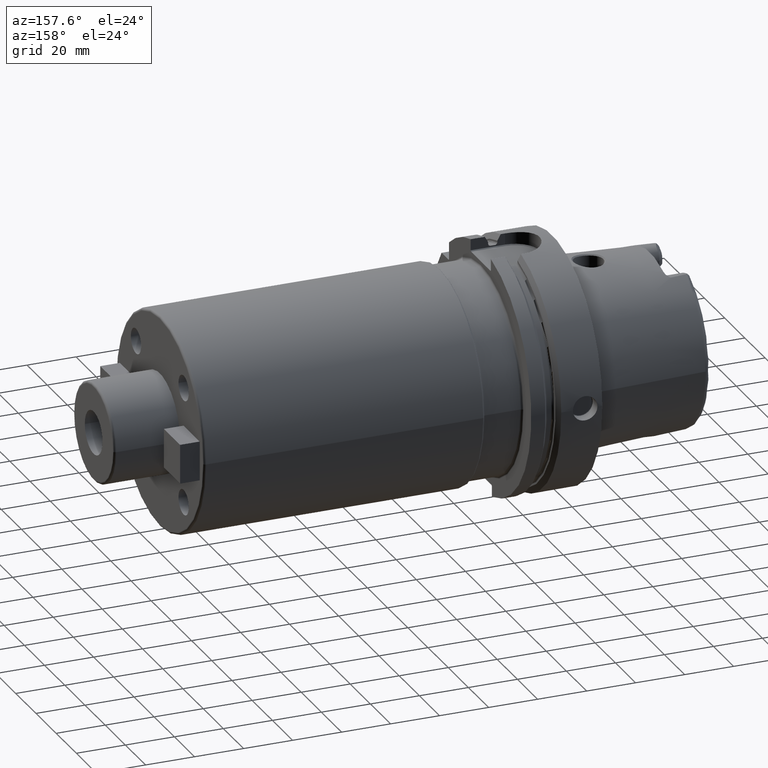
[diagram: clean part render]
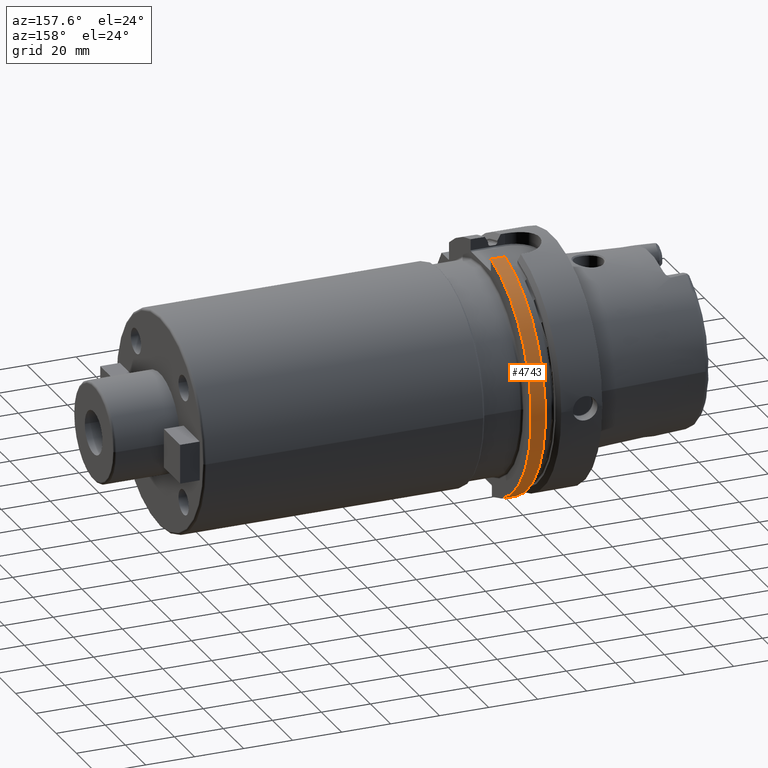
[diagram: same view with one face highlighted and labeled with its STEP entity id]
A machine part, auxiliary view. The second image highlights one B-rep face of the part: STEP entity #4743.
In plain terms, the highlighted cylindrical surface (partial cylindrical patch) has radius 50 mm, axis along (1, 0, 0).
Its self-contained STEP definition (entity closure, byte-faithful):
#1110=DIRECTION('',(1.E0,0.E0,0.E0));
#1111=VECTOR('',#1110,5.752404735808E0);
#1112=CARTESIAN_POINT('',(2.324759526419E1,1.1E1,-4.877499359303E1));
#1113=LINE('',#1112,#1111);
#1114=CARTESIAN_POINT('',(2.9E1,0.E0,0.E0));
#1115=DIRECTION('',(1.E0,0.E0,0.E0));
#1116=DIRECTION('',(0.E0,2.2E-1,-9.754998718606E-1));
#1117=AXIS2_PLACEMENT_3D('',#1114,#1115,#1116);
#1119=DIRECTION('',(1.E0,0.E0,0.E0));
#1120=VECTOR('',#1119,5.752404735808E0);
#1121=CARTESIAN_POINT('',(2.324759526419E1,1.E1,4.898979485566E1));
#1122=LINE('',#1121,#1120);
#1653=CARTESIAN_POINT('',(2.324759526419E1,0.E0,0.E0));
#1654=DIRECTION('',(1.E0,0.E0,0.E0));
#1655=DIRECTION('',(0.E0,2.2E-1,-9.754998718606E-1));
#1656=AXIS2_PLACEMENT_3D('',#1653,#1654,#1655);
#1663=CARTESIAN_POINT('',(2.324759526419E1,1.E1,4.898979485566E1));
#3335=VERTEX_POINT('',#1663);
#3344=CARTESIAN_POINT('',(2.324759526419E1,1.1E1,-4.877499359303E1));
#3345=CARTESIAN_POINT('',(2.9E1,1.1E1,-4.877499359303E1));
#3346=VERTEX_POINT('',#3344);
#3347=VERTEX_POINT('',#3345);
#3390=CARTESIAN_POINT('',(2.9E1,1.E1,4.898979485566E1));
#3391=VERTEX_POINT('',#3390);
#4729=CARTESIAN_POINT('',(-5.395E1,0.E0,0.E0));
#4730=DIRECTION('',(1.E0,0.E0,0.E0));
#4731=DIRECTION('',(0.E0,-1.E0,0.E0));
#4732=AXIS2_PLACEMENT_3D('',#4729,#4730,#4731);
#4733=CYLINDRICAL_SURFACE('',#4732,5.E1);
#4735=ORIENTED_EDGE('',*,*,#4734,.T.);
#4736=ORIENTED_EDGE('',*,*,#4678,.T.);
#4738=ORIENTED_EDGE('',*,*,#4737,.F.);
#4740=ORIENTED_EDGE('',*,*,#4739,.F.);
#4741=EDGE_LOOP('',(#4735,#4736,#4738,#4740));
#4742=FACE_OUTER_BOUND('',#4741,.F.);
#4743=ADVANCED_FACE('',(#4742),#4733,.T.);
#1118=CIRCLE('',#1117,5.E1);
#1657=CIRCLE('',#1656,5.E1);
#4678=EDGE_CURVE('',#3347,#3391,#1118,.T.);
#4734=EDGE_CURVE('',#3346,#3347,#1113,.T.);
#4737=EDGE_CURVE('',#3335,#3391,#1122,.T.);
#4739=EDGE_CURVE('',#3346,#3335,#1657,.T.);